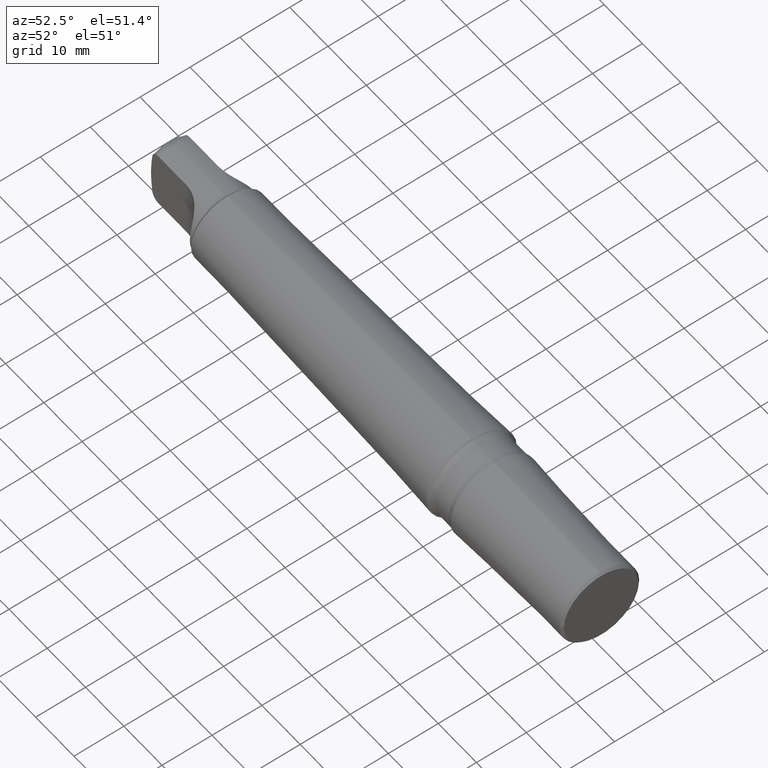
[diagram: clean part render]
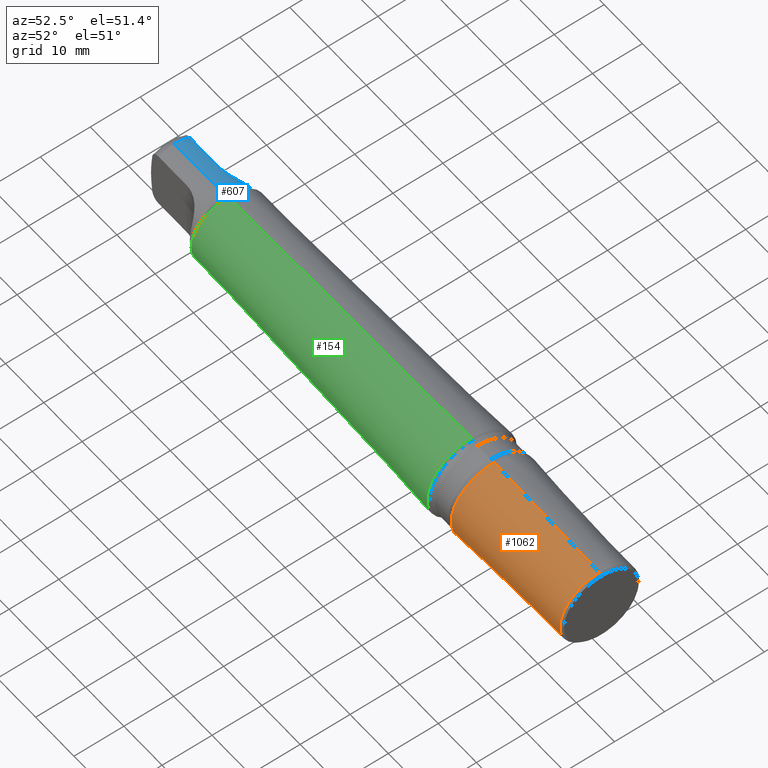
[diagram: same view with three faces highlighted in distinct colors, each labeled with its STEP entity id]
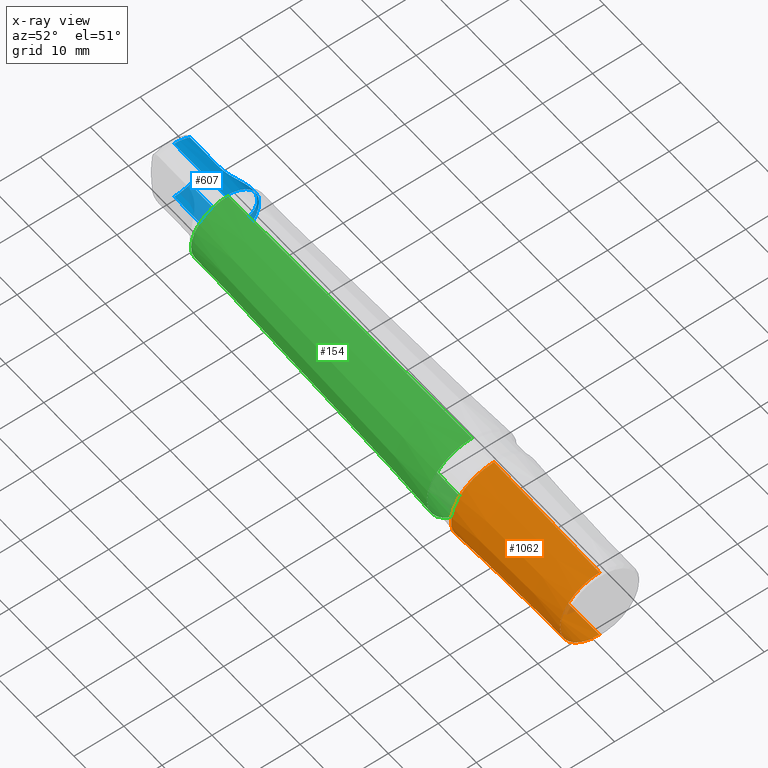
[diagram: x-ray of the same camera — body ghosted, the three highlighted faces saturated]
A machine part, auxiliary view with three faces highlighted in distinct colors.
The next image is the same camera in x-ray (body ghosted, the three faces saturated) — at least one of them is partly hidden behind the body in this view.
Their STEP definitions:

[orange] entity #1062 — the highlighted conical surface has half-angle 1.487 deg.
#54 = VERTEX_POINT ( 'NONE', #787 ) ;
#92 = ORIENTED_EDGE ( 'NONE', *, *, #532, .T. ) ;
#104 = CARTESIAN_POINT ( 'NONE',  ( 113.0629123909999700, 1.015818227277363500E-015, -7.937087609000000700 ) ) ;
#108 = ORIENTED_EDGE ( 'NONE', *, *, #777, .F. ) ;
#128 = DIRECTION ( 'NONE',  ( 1.000000000000000000, -0.0000000000000000000, -0.0000000000000000000 ) ) ;
#158 = CIRCLE ( 'NONE', #493, 8.652483000000001900 ) ;
#171 = DIRECTION ( 'NONE',  ( -0.9996633390748166400, 0.0000000000000000000, 0.02594626196175527100 ) ) ;
#176 = CARTESIAN_POINT ( 'NONE',  ( 113.0629123910000000, 9.720128934913968600E-016, -7.937087609000000700 ) ) ;
#190 = CARTESIAN_POINT ( 'NONE',  ( 113.0629123909999700, 0.0000000000000000000, 0.0000000000000000000 ) ) ;
#196 = CARTESIAN_POINT ( 'NONE',  ( 85.49999999975793200, -8.873269642353095700E-010, -8.652482999658712300 ) ) ;
#198 = CARTESIAN_POINT ( 'NONE',  ( 85.49999999999991500, 0.0000000000000000000, 0.0000000000000000000 ) ) ;
#200 = VECTOR ( 'NONE', #171, 1000.000000000000100 ) ;
#267 = DIRECTION ( 'NONE',  ( 0.0000000000000000000, 0.0000000000000000000, 1.000000000000000000 ) ) ;
#281 = DIRECTION ( 'NONE',  ( 3.496947114979099800E-015, 0.0000000000000000000, 1.000000000000000000 ) ) ;
#300 = CARTESIAN_POINT ( 'NONE',  ( 113.0629123909999700, 0.0000000000000000000, 0.0000000000000000000 ) ) ;
#319 = VERTEX_POINT ( 'NONE', #717 ) ;
#327 = DIRECTION ( 'NONE',  ( -1.000000000000000000, 0.0000000000000000000, 0.0000000000000000000 ) ) ;
#393 = VERTEX_POINT ( 'NONE', #196 ) ;
#399 = FACE_OUTER_BOUND ( 'NONE', #749, .T. ) ;
#428 = EDGE_CURVE ( 'NONE', #319, #54, #783, .T. ) ;
#493 = AXIS2_PLACEMENT_3D ( 'NONE', #198, #327, #1037 ) ;
#499 = DIRECTION ( 'NONE',  ( 3.496947114979099800E-015, 0.0000000000000000000, 1.000000000000000000 ) ) ;
#507 = EDGE_CURVE ( 'NONE', #1041, #393, #1191, .T. ) ;
#532 = EDGE_CURVE ( 'NONE', #319, #1167, #966, .T. ) ;
#559 = CARTESIAN_POINT ( 'NONE',  ( 113.0629123910000000, 0.0000000000000000000, 0.0000000000000000000 ) ) ;
#562 = AXIS2_PLACEMENT_3D ( 'NONE', #559, #859, #267 ) ;
#648 = AXIS2_PLACEMENT_3D ( 'NONE', #300, #128, #499 ) ;
#650 = ORIENTED_EDGE ( 'NONE', *, *, #428, .F. ) ;
#717 = CARTESIAN_POINT ( 'NONE',  ( 113.0629123909999700, 0.0000000000000000000, 7.937087609000000700 ) ) ;
#727 = ORIENTED_EDGE ( 'NONE', *, *, #1058, .F. ) ;
#749 = EDGE_LOOP ( 'NONE', ( #1085, #108, #650, #92, #727 ) ) ;
#777 = EDGE_CURVE ( 'NONE', #54, #1041, #1020, .T. ) ;
#783 = CIRCLE ( 'NONE', #818, 7.937087609000000700 ) ;
#787 = CARTESIAN_POINT ( 'NONE',  ( 113.0629123909999700, -7.937087609000044200, 0.0000000000000000000 ) ) ;
#818 = AXIS2_PLACEMENT_3D ( 'NONE', #190, #841, #281 ) ;
#825 = CARTESIAN_POINT ( 'NONE',  ( 113.0629123910000000, 0.0000000000000000000, 7.937087609000000700 ) ) ;
#841 = DIRECTION ( 'NONE',  ( 1.000000000000000000, -0.0000000000000000000, -0.0000000000000000000 ) ) ;
#844 = CONICAL_SURFACE ( 'NONE', #562, 7.937087609000000700, 0.02594917405143279100 ) ;
#859 = DIRECTION ( 'NONE',  ( -1.000000000000000000, 0.0000000000000000000, 0.0000000000000000000 ) ) ;
#914 = DIRECTION ( 'NONE',  ( -0.9996633390748166400, 3.177500666130231300E-018, -0.02594626196175527100 ) ) ;
#940 = VECTOR ( 'NONE', #914, 1000.000000000000100 ) ;
#966 = LINE ( 'NONE', #825, #200 ) ;
#1020 = CIRCLE ( 'NONE', #648, 7.937087609000000700 ) ;
#1037 = DIRECTION ( 'NONE',  ( 1.122735689335664300E-014, 0.0000000000000000000, 1.000000000000000000 ) ) ;
#1041 = VERTEX_POINT ( 'NONE', #104 ) ;
#1058 = EDGE_CURVE ( 'NONE', #393, #1167, #158, .T. ) ;
#1062 = ADVANCED_FACE ( 'NONE', ( #399 ), #844, .T. ) ;
#1084 = CARTESIAN_POINT ( 'NONE',  ( 85.49999999979826300, -3.884689217439648400E-010, 8.652482999715594800 ) ) ;
#1085 = ORIENTED_EDGE ( 'NONE', *, *, #507, .F. ) ;
#1167 = VERTEX_POINT ( 'NONE', #1084 ) ;
#1191 = LINE ( 'NONE', #176, #940 ) ;

[blue] entity #607 — the highlighted cylindrical surface (partial cylindrical patch) has radius 6.75 mm, axis along (1, 0, 0).
#20 = CARTESIAN_POINT ( 'NONE',  ( 14.72365569066720800, 6.538761990655725500, -1.688920896106537400 ) ) ;
#24 = VERTEX_POINT ( 'NONE', #878 ) ;
#31 = CIRCLE ( 'NONE', #884, 6.750000000000000000 ) ;
#53 = CARTESIAN_POINT ( 'NONE',  ( 15.33341255599996000, 0.0000000000000000000, 0.0000000000000000000 ) ) ;
#73 = CARTESIAN_POINT ( 'NONE',  ( 15.33341255599996000, 6.750000000000000000, 0.0000000000000000000 ) ) ;
#74 = DIRECTION ( 'NONE',  ( -7.709882115452476200E-016, 0.0000000000000000000, -1.000000000000000000 ) ) ;
#76 = CARTESIAN_POINT ( 'NONE',  ( 9.333412554828365500, 3.175000000109428700, -5.956666433384553400 ) ) ;
#80 = CARTESIAN_POINT ( 'NONE',  ( 13.00681226915281900, 4.427025857611182500, -5.097598408559774100 ) ) ;
#88 = ORIENTED_EDGE ( 'NONE', *, *, #1083, .F. ) ;
#95 = CARTESIAN_POINT ( 'NONE',  ( 14.82152678694248300, 6.750004703477419100, -0.4314413204900693900 ) ) ;
#111 = DIRECTION ( 'NONE',  ( 1.000000000000000000, 0.0000000000000000000, 0.0000000000000000000 ) ) ;
#127 = VECTOR ( 'NONE', #340, 1000.000000000000000 ) ;
#133 = VERTEX_POINT ( 'NONE', #1057 ) ;
#149 = CARTESIAN_POINT ( 'NONE',  ( 11.01950843293834500, 3.412906691949578500, 5.824137577923617700 ) ) ;
#170 = CARTESIAN_POINT ( 'NONE',  ( 13.42850420755961800, 4.786011013395208700, -4.762783847673360600 ) ) ;
#182 = VERTEX_POINT ( 'NONE', #1165 ) ;
#186 = CARTESIAN_POINT ( 'NONE',  ( 14.66970051812943000, 6.426293976573518300, 2.107312980170144500 ) ) ;
#194 = CARTESIAN_POINT ( 'NONE',  ( 14.16164613697910800, 5.610563267119383500, -3.758240889702654000 ) ) ;
#228 = CARTESIAN_POINT ( 'NONE',  ( 1.917886911000000100, 8.266365894244634300E-016, 6.750000000000000000 ) ) ;
#230 = ORIENTED_EDGE ( 'NONE', *, *, #275, .F. ) ;
#238 = CARTESIAN_POINT ( 'NONE',  ( 1.917886911000000100, 0.0000000000000000000, 0.0000000000000000000 ) ) ;
#245 = CARTESIAN_POINT ( 'NONE',  ( 14.74752456544606700, 6.588622485321670800, -1.482433201831132600 ) ) ;
#246 = CARTESIAN_POINT ( 'NONE',  ( 8.625649733500001300, 3.174999997994251400, 5.956666434570304400 ) ) ;
#260 = CARTESIAN_POINT ( 'NONE',  ( 13.88641540608910000, 5.264424314370071300, -4.229096836346840000 ) ) ;
#261 = VERTEX_POINT ( 'NONE', #853 ) ;
#273 = VERTEX_POINT ( 'NONE', #965 ) ;
#275 = EDGE_CURVE ( 'NONE', #182, #1141, #1094, .T. ) ;
#288 = CIRCLE ( 'NONE', #996, 6.750000000000000000 ) ;
#293 = EDGE_CURVE ( 'NONE', #496, #24, #628, .T. ) ;
#331 = EDGE_CURVE ( 'NONE', #496, #133, #843, .T. ) ;
#333 = CARTESIAN_POINT ( 'NONE',  ( 10.81259792781383100, 3.356310079640433000, 5.856650285309963300 ) ) ;
#335 = CARTESIAN_POINT ( 'NONE',  ( 1.917886911000005200, 0.0000000000000000000, 0.0000000000000000000 ) ) ;
#339 = CARTESIAN_POINT ( 'NONE',  ( 14.80385369757458300, 6.708807851440790900, -0.8570968558785278000 ) ) ;
#340 = DIRECTION ( 'NONE',  ( 1.000000000000000000, 0.0000000000000000000, 0.0000000000000000000 ) ) ;
#345 = CIRCLE ( 'NONE', #809, 6.750000000000000000 ) ;
#354 = CARTESIAN_POINT ( 'NONE',  ( 9.549888966523296200, 3.174999999915695700, -5.956666433546142300 ) ) ;
#359 = CARTESIAN_POINT ( 'NONE',  ( 14.62729626562981400, 6.349649690704207900, -2.299621549780883200 ) ) ;
#379 = CARTESIAN_POINT ( 'NONE',  ( 14.82152262999198900, 6.749995295720499800, 0.4315884819415839500 ) ) ;
#381 = CARTESIAN_POINT ( 'NONE',  ( 11.61461054962093300, 3.621762805775529300, 5.696980589680285900 ) ) ;
#426 = CARTESIAN_POINT ( 'NONE',  ( 14.37514442352496000, 5.920291674080573300, 3.248900511662145400 ) ) ;
#437 = DIRECTION ( 'NONE',  ( -1.000000000000000000, -0.0000000000000000000, -0.0000000000000000000 ) ) ;
#446 = DIRECTION ( 'NONE',  ( -1.000000000000000000, -0.0000000000000000000, -0.0000000000000000000 ) ) ;
#448 = CARTESIAN_POINT ( 'NONE',  ( 10.40662749567011900, 3.267905220332196300, -5.906440093941812500 ) ) ;
#468 = CARTESIAN_POINT ( 'NONE',  ( 14.08104226622685600, 5.496855420558114600, 3.938061816206726000 ) ) ;
#471 = B_SPLINE_CURVE_WITH_KNOTS ( 'NONE', 3,
 ( #1031, #663, #928, #333, #149, #1013, #381, #896, #756, #1131, #1108, #479, #729, #1153, #468, #595, #426, #573, #505, #186, #1060, #1080, #379, #95, #339, #245, #20, #985, #359, #1147, #883, #194, #547, #260, #823, #913, #170, #725, #80, #640, #1193, #537, #1104, #448, #907, #1006, #354, #76 ),
 .UNSPECIFIED., .F., .F.,
 ( 4, 2, 2, 2, 2, 2, 2, 2, 2, 2, 2, 2, 2, 2, 2, 2, 2, 2, 2, 2, 2, 2, 2, 4 ),
 ( 2.156428955488437600E-012, 0.001279814170635351500, 0.001919721254874809900, 0.002559628339114268300, 0.003199535423353726500, 0.003839442507593186400, 0.005119256676072101900, 0.006399070844551017400, 0.007038977928790474300, 0.007678885013029931200, 0.008958699181508846700, 0.01023851334998776000, 0.01151832751846667200, 0.01215823460270612800, 0.01279814168694558600, 0.01407795585542450200, 0.01471786293966395400, 0.01535777002390340900, 0.01599767710814286100, 0.01663758419238231500, 0.01791739836086122000, 0.01919721252934012900, 0.01983711961357958300, 0.02047702669781903400 ),
 .UNSPECIFIED. ) ;
#479 = CARTESIAN_POINT ( 'NONE',  ( 13.15577253091261200, 4.534098997694109700, 5.009007095117533800 ) ) ;
#490 = LINE ( 'NONE', #1103, #986 ) ;
#496 = VERTEX_POINT ( 'NONE', #550 ) ;
#505 = CARTESIAN_POINT ( 'NONE',  ( 14.54116225217257300, 6.193862363708844600, 2.691179961813363200 ) ) ;
#514 = ORIENTED_EDGE ( 'NONE', *, *, #1185, .T. ) ;
#533 = DIRECTION ( 'NONE',  ( 6.424901762877063700E-015, 0.0000000000000000000, -1.000000000000000000 ) ) ;
#537 = CARTESIAN_POINT ( 'NONE',  ( 11.43113469682093200, 3.538185944537767000, -5.752068263599714000 ) ) ;
#547 = CARTESIAN_POINT ( 'NONE',  ( 14.07587745531771600, 5.496486193488073500, -3.922762156660101400 ) ) ;
#550 = CARTESIAN_POINT ( 'NONE',  ( 1.917886911000005200, 8.266365894244634300E-016, 6.750000000000000000 ) ) ;
#551 = VERTEX_POINT ( 'NONE', #909 ) ;
#560 = VERTEX_POINT ( 'NONE', #73 ) ;
#573 = CARTESIAN_POINT ( 'NONE',  ( 14.49145681746267500, 6.107954857257900500, 2.880641508859777200 ) ) ;
#595 = CARTESIAN_POINT ( 'NONE',  ( 14.30809049512052900, 5.817953194367978800, 3.428444723754426400 ) ) ;
#597 = VECTOR ( 'NONE', #111, 1000.000000000000000 ) ;
#599 = LINE ( 'NONE', #246, #127 ) ;
#607 = ADVANCED_FACE ( 'NONE', ( #895 ), #869, .T. ) ;
#616 = DIRECTION ( 'NONE',  ( -1.000000000000000000, -0.0000000000000000000, -0.0000000000000000000 ) ) ;
#628 = LINE ( 'NONE', #228, #597 ) ;
#640 = CARTESIAN_POINT ( 'NONE',  ( 12.53852141115888100, 4.088176544825024000, -5.379180463042596100 ) ) ;
#657 = VECTOR ( 'NONE', #758, 1000.000000000000000 ) ;
#663 = CARTESIAN_POINT ( 'NONE',  ( 9.765871427570395700, 3.174999999502621200, 5.956666433394083500 ) ) ;
#704 = DIRECTION ( 'NONE',  ( 1.000000000000000000, 0.0000000000000000000, 0.0000000000000000000 ) ) ;
#725 = CARTESIAN_POINT ( 'NONE',  ( 13.15548050328857200, 4.546307250905418800, -4.992103943265136400 ) ) ;
#728 = DIRECTION ( 'NONE',  ( -1.000000000000000000, -0.0000000000000000000, -0.0000000000000000000 ) ) ;
#729 = CARTESIAN_POINT ( 'NONE',  ( 13.42677504174267100, 4.775188342319098400, 4.784623274081123900 ) ) ;
#756 = CARTESIAN_POINT ( 'NONE',  ( 12.17051390281393700, 3.884303767128437700, 5.521810322437797700 ) ) ;
#758 = DIRECTION ( 'NONE',  ( 1.000000000000000000, 0.0000000000000000000, 0.0000000000000000000 ) ) ;
#781 = DIRECTION ( 'NONE',  ( -1.000000000000000000, -0.0000000000000000000, -0.0000000000000000000 ) ) ;
#800 = DIRECTION ( 'NONE',  ( 0.0000000000000000000, 0.0000000000000000000, -1.000000000000000000 ) ) ;
#809 = AXIS2_PLACEMENT_3D ( 'NONE', #335, #437, #993 ) ;
#822 = ORIENTED_EDGE ( 'NONE', *, *, #293, .T. ) ;
#823 = CARTESIAN_POINT ( 'NONE',  ( 13.78233375454268400, 5.145792863941467800, -4.372118685754353300 ) ) ;
#830 = EDGE_CURVE ( 'NONE', #551, #273, #490, .T. ) ;
#843 = CIRCLE ( 'NONE', #1029, 6.750000000000000000 ) ;
#853 = CARTESIAN_POINT ( 'NONE',  ( 9.333412556000002500, 3.174999998997126000, 5.956666434035756000 ) ) ;
#855 = EDGE_CURVE ( 'NONE', #24, #560, #31, .T. ) ;
#856 = CARTESIAN_POINT ( 'NONE',  ( 1.917886911000000100, 0.0000000000000000000, -6.750000000000000000 ) ) ;
#869 = CYLINDRICAL_SURFACE ( 'NONE', #976, 6.750000000000000000 ) ;
#878 = CARTESIAN_POINT ( 'NONE',  ( 15.33341255599996000, 8.266365894244634300E-016, 6.750000000000000000 ) ) ;
#883 = CARTESIAN_POINT ( 'NONE',  ( 14.38738531337902600, 5.930688931609276800, -3.248169920742536300 ) ) ;
#884 = AXIS2_PLACEMENT_3D ( 'NONE', #999, #728, #533 ) ;
#895 = FACE_OUTER_BOUND ( 'NONE', #908, .T. ) ;
#896 = CARTESIAN_POINT ( 'NONE',  ( 11.98955318845465000, 3.791021493166818200, 5.585777448022808400 ) ) ;
#902 = ORIENTED_EDGE ( 'NONE', *, *, #855, .T. ) ;
#907 = CARTESIAN_POINT ( 'NONE',  ( 10.19295470090658800, 3.232989329381973600, -5.925451270200663400 ) ) ;
#908 = EDGE_LOOP ( 'NONE', ( #1189, #822, #902, #514, #230, #1048, #984, #1099, #88 ) ) ;
#909 = CARTESIAN_POINT ( 'NONE',  ( 9.333412554828365500, 3.175000000109428700, -5.956666433384553400 ) ) ;
#913 = CARTESIAN_POINT ( 'NONE',  ( 13.55337541483680400, 4.906590056455991400, -4.638963248270078700 ) ) ;
#928 = CARTESIAN_POINT ( 'NONE',  ( 10.18967805211067000, 3.221230067083671300, 5.932693866649885600 ) ) ;
#965 = CARTESIAN_POINT ( 'NONE',  ( 1.917886910271570300, 3.175000000218856800, -5.956666433173190900 ) ) ;
#976 = AXIS2_PLACEMENT_3D ( 'NONE', #238, #704, #800 ) ;
#984 = ORIENTED_EDGE ( 'NONE', *, *, #830, .F. ) ;
#985 = CARTESIAN_POINT ( 'NONE',  ( 14.66356032280893000, 6.419279281799361100, -2.097788279596112000 ) ) ;
#986 = VECTOR ( 'NONE', #781, 1000.000000000000000 ) ;
#993 = DIRECTION ( 'NONE',  ( -7.709882115452476200E-016, 0.0000000000000000000, -1.000000000000000000 ) ) ;
#996 = AXIS2_PLACEMENT_3D ( 'NONE', #53, #616, #1168 ) ;
#999 = CARTESIAN_POINT ( 'NONE',  ( 15.33341255599996000, 0.0000000000000000000, 0.0000000000000000000 ) ) ;
#1006 = CARTESIAN_POINT ( 'NONE',  ( 9.765088353549416000, 3.186681411746767000, -5.950483538288963800 ) ) ;
#1013 = CARTESIAN_POINT ( 'NONE',  ( 11.42063177814914200, 3.545776739584841400, 5.744212559398834000 ) ) ;
#1029 = AXIS2_PLACEMENT_3D ( 'NONE', #1038, #446, #74 ) ;
#1031 = CARTESIAN_POINT ( 'NONE',  ( 9.333412556000002500, 3.174999998997126000, 5.956666434035756000 ) ) ;
#1038 = CARTESIAN_POINT ( 'NONE',  ( 1.917886911000005200, 0.0000000000000000000, 0.0000000000000000000 ) ) ;
#1048 = ORIENTED_EDGE ( 'NONE', *, *, #1117, .F. ) ;
#1057 = CARTESIAN_POINT ( 'NONE',  ( 1.917886910271570100, 3.174999998997126000, 5.956666434093033800 ) ) ;
#1060 = CARTESIAN_POINT ( 'NONE',  ( 14.72850419358480800, 6.548046709526179400, 1.693249399591903100 ) ) ;
#1071 = EDGE_CURVE ( 'NONE', #261, #551, #471, .T. ) ;
#1080 = CARTESIAN_POINT ( 'NONE',  ( 14.80393719589303800, 6.708979413591219300, 0.8565071321151596100 ) ) ;
#1083 = EDGE_CURVE ( 'NONE', #133, #261, #599, .T. ) ;
#1090 = CARTESIAN_POINT ( 'NONE',  ( 15.33341255599996000, 0.0000000000000000000, -6.750000000000000000 ) ) ;
#1094 = LINE ( 'NONE', #856, #657 ) ;
#1099 = ORIENTED_EDGE ( 'NONE', *, *, #1071, .F. ) ;
#1103 = CARTESIAN_POINT ( 'NONE',  ( 8.625649733500001300, 3.175000000437714600, -5.956666433267898200 ) ) ;
#1104 = CARTESIAN_POINT ( 'NONE',  ( 11.03218310625021900, 3.404695433649835400, -5.829365784858176800 ) ) ;
#1108 = CARTESIAN_POINT ( 'NONE',  ( 12.68712263718345000, 4.196071584756119900, 5.289320344388245900 ) ) ;
#1117 = EDGE_CURVE ( 'NONE', #273, #182, #345, .T. ) ;
#1131 = CARTESIAN_POINT ( 'NONE',  ( 12.51911505315675500, 4.086590594279580400, 5.373823806848753800 ) ) ;
#1141 = VERTEX_POINT ( 'NONE', #1090 ) ;
#1147 = CARTESIAN_POINT ( 'NONE',  ( 14.49904218703559200, 6.117630719024280200, -2.883112251223849800 ) ) ;
#1153 = CARTESIAN_POINT ( 'NONE',  ( 13.89447275814762700, 5.262112460709451200, 4.243255357664126300 ) ) ;
#1165 = CARTESIAN_POINT ( 'NONE',  ( 1.917886911000005200, -3.030534959469740100E-010, -6.749999999922825300 ) ) ;
#1168 = DIRECTION ( 'NONE',  ( 6.424901762877063700E-015, 0.0000000000000000000, -1.000000000000000000 ) ) ;
#1185 = EDGE_CURVE ( 'NONE', #560, #1141, #288, .T. ) ;
#1189 = ORIENTED_EDGE ( 'NONE', *, *, #331, .F. ) ;
#1193 = CARTESIAN_POINT ( 'NONE',  ( 12.19118474238549000, 3.882812455452055100, -5.525288818063901700 ) ) ;

[green] entity #154 — the highlighted conical surface has half-angle 1.431 deg.
#43 = DIRECTION ( 'NONE',  ( -1.000000000000000000, -0.0000000000000000000, -0.0000000000000000000 ) ) ;
#47 = DIRECTION ( 'NONE',  ( 1.000000000000000000, 0.0000000000000000000, 0.0000000000000000000 ) ) ;
#49 = ORIENTED_EDGE ( 'NONE', *, *, #110, .T. ) ;
#110 = EDGE_CURVE ( 'NONE', #457, #1010, #956, .T. ) ;
#116 = VERTEX_POINT ( 'NONE', #603 ) ;
#129 = CIRCLE ( 'NONE', #388, 7.416587444000000100 ) ;
#130 = EDGE_CURVE ( 'NONE', #667, #1010, #494, .T. ) ;
#137 = DIRECTION ( 'NONE',  ( -6.162854973870984900E-015, 0.0000000000000000000, 1.000000000000000000 ) ) ;
#154 = ADVANCED_FACE ( 'NONE', ( #209 ), #398, .T. ) ;
#209 = FACE_OUTER_BOUND ( 'NONE', #518, .T. ) ;
#215 = DIRECTION ( 'NONE',  ( 0.9996883180627111900, 3.057368760791976400E-018, 0.02496531051173804200 ) ) ;
#259 = DIRECTION ( 'NONE',  ( -1.871182388477270600E-015, 0.0000000000000000000, -1.000000000000000000 ) ) ;
#263 = ORIENTED_EDGE ( 'NONE', *, *, #419, .F. ) ;
#279 = AXIS2_PLACEMENT_3D ( 'NONE', #774, #47, #1151 ) ;
#351 = ORIENTED_EDGE ( 'NONE', *, *, #130, .F. ) ;
#360 = AXIS2_PLACEMENT_3D ( 'NONE', #402, #688, #598 ) ;
#378 = CARTESIAN_POINT ( 'NONE',  ( 16.00000000000001400, 0.0000000000000000000, 0.0000000000000000000 ) ) ;
#382 = CARTESIAN_POINT ( 'NONE',  ( 79.70009350500006900, 1.103085403770978200E-015, 9.007375878000001300 ) ) ;
#388 = AXIS2_PLACEMENT_3D ( 'NONE', #674, #43, #407 ) ;
#398 = CONICAL_SURFACE ( 'NONE', #279, 7.416587444000000100, 0.02496790458059912000 ) ;
#402 = CARTESIAN_POINT ( 'NONE',  ( 79.70009350500006900, 0.0000000000000000000, 0.0000000000000000000 ) ) ;
#405 = DIRECTION ( 'NONE',  ( -1.000000000000000000, 0.0000000000000000000, 0.0000000000000000000 ) ) ;
#407 = DIRECTION ( 'NONE',  ( -1.871182388477270600E-015, 0.0000000000000000000, -1.000000000000000000 ) ) ;
#419 = EDGE_CURVE ( 'NONE', #116, #667, #813, .T. ) ;
#449 = LINE ( 'NONE', #637, #1162 ) ;
#457 = VERTEX_POINT ( 'NONE', #541 ) ;
#494 = LINE ( 'NONE', #1158, #933 ) ;
#518 = EDGE_LOOP ( 'NONE', ( #351, #263, #649, #677, #1054, #49 ) ) ;
#541 = CARTESIAN_POINT ( 'NONE',  ( 79.70009350500006900, -9.007375877999958600, 0.0000000000000000000 ) ) ;
#575 = EDGE_CURVE ( 'NONE', #1015, #881, #449, .T. ) ;
#598 = DIRECTION ( 'NONE',  ( -6.162854973870984900E-015, 0.0000000000000000000, 1.000000000000000000 ) ) ;
#603 = CARTESIAN_POINT ( 'NONE',  ( 16.00000000000001400, -7.416587444000012600, 9.082700073891063400E-016 ) ) ;
#632 = DIRECTION ( 'NONE',  ( 0.9996883180627111900, 0.0000000000000000000, -0.02496531051173804200 ) ) ;
#633 = AXIS2_PLACEMENT_3D ( 'NONE', #378, #935, #259 ) ;
#637 = CARTESIAN_POINT ( 'NONE',  ( 16.00000000000000000, 0.0000000000000000000, -7.416587444000000100 ) ) ;
#639 = CARTESIAN_POINT ( 'NONE',  ( 79.70009350500006900, 0.0000000000000000000, -9.007375878000001300 ) ) ;
#649 = ORIENTED_EDGE ( 'NONE', *, *, #752, .F. ) ;
#661 = CARTESIAN_POINT ( 'NONE',  ( 16.00000000000001400, 0.0000000000000000000, -7.416587444000000100 ) ) ;
#667 = VERTEX_POINT ( 'NONE', #917 ) ;
#674 = CARTESIAN_POINT ( 'NONE',  ( 16.00000000000001400, 0.0000000000000000000, 0.0000000000000000000 ) ) ;
#677 = ORIENTED_EDGE ( 'NONE', *, *, #575, .T. ) ;
#688 = DIRECTION ( 'NONE',  ( -1.000000000000000000, 0.0000000000000000000, 0.0000000000000000000 ) ) ;
#712 = CIRCLE ( 'NONE', #1166, 9.007375877999999500 ) ;
#726 = EDGE_CURVE ( 'NONE', #881, #457, #712, .T. ) ;
#752 = EDGE_CURVE ( 'NONE', #1015, #116, #129, .T. ) ;
#774 = CARTESIAN_POINT ( 'NONE',  ( 16.00000000000000000, 0.0000000000000000000, 0.0000000000000000000 ) ) ;
#813 = CIRCLE ( 'NONE', #633, 7.416587444000000100 ) ;
#881 = VERTEX_POINT ( 'NONE', #639 ) ;
#917 = CARTESIAN_POINT ( 'NONE',  ( 16.00000000000001400, 1.005677705580041400E-015, 7.416587444000000100 ) ) ;
#933 = VECTOR ( 'NONE', #215, 1000.000000000000200 ) ;
#935 = DIRECTION ( 'NONE',  ( -1.000000000000000000, -0.0000000000000000000, -0.0000000000000000000 ) ) ;
#956 = CIRCLE ( 'NONE', #360, 9.007375877999999500 ) ;
#973 = CARTESIAN_POINT ( 'NONE',  ( 79.70009350500006900, 0.0000000000000000000, 0.0000000000000000000 ) ) ;
#1010 = VERTEX_POINT ( 'NONE', #382 ) ;
#1015 = VERTEX_POINT ( 'NONE', #661 ) ;
#1054 = ORIENTED_EDGE ( 'NONE', *, *, #726, .T. ) ;
#1151 = DIRECTION ( 'NONE',  ( 0.0000000000000000000, 0.0000000000000000000, -1.000000000000000000 ) ) ;
#1158 = CARTESIAN_POINT ( 'NONE',  ( 16.00000000000000000, 9.082700073891051500E-016, 7.416587444000000100 ) ) ;
#1162 = VECTOR ( 'NONE', #632, 1000.000000000000200 ) ;
#1166 = AXIS2_PLACEMENT_3D ( 'NONE', #973, #405, #137 ) ;